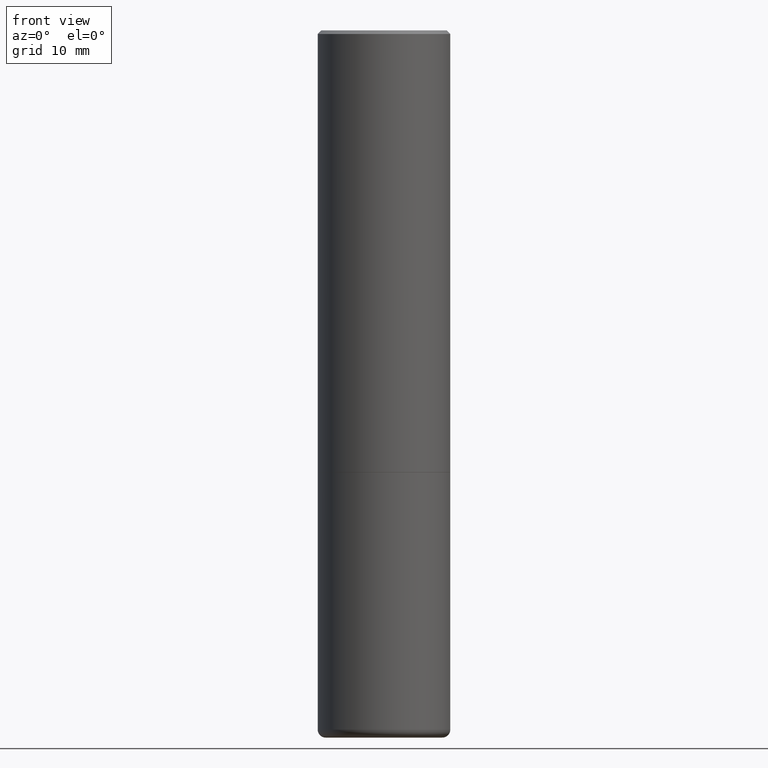
[diagram: clean part render]
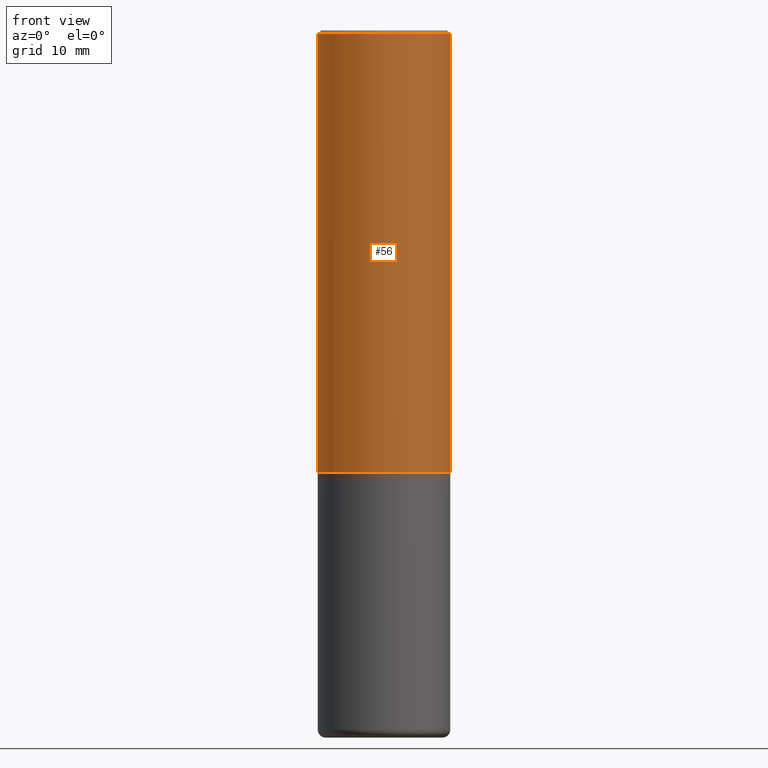
[diagram: same view with one face highlighted and labeled with its STEP entity id]
A machine part, front view. The second image highlights one B-rep face of the part: STEP entity #56.
In plain terms, the highlighted cylindrical surface (partial cylindrical patch) has radius 9.525 mm, axis along (-0, 0, 1).
Its self-contained STEP definition (entity closure, byte-faithful):
#16 = VERTEX_POINT ( 'NONE', #174 ) ;
#26 = ORIENTED_EDGE ( 'NONE', *, *, #374, .T. ) ;
#29 = CYLINDRICAL_SURFACE ( 'NONE', #132, 0.3749999999999998335 ) ;
#30 = DIRECTION ( 'NONE',  ( -2.445468806185136597E-29, 3.491481338843145583E-15, 1.000000000000000000 ) ) ;
#50 = DIRECTION ( 'NONE',  ( 1.000000000000000000, -6.982962677686266711E-15, 0.000000000000000000 ) ) ;
#54 = VECTOR ( 'NONE', #390, 39.37007874015748143 ) ;
#56 = ADVANCED_FACE ( 'NONE', ( #329 ), #29, .T. ) ;
#84 = EDGE_CURVE ( 'NONE', #199, #16, #219, .T. ) ;
#87 = CARTESIAN_POINT ( 'NONE',  ( 4.890937612370276662E-31, -6.982962677686296539E-17, -0.02000000000000001776 ) ) ;
#100 = ORIENTED_EDGE ( 'NONE', *, *, #84, .F. ) ;
#113 = CARTESIAN_POINT ( 'NONE',  ( -0.3749999999999999445, -1.732985487172565737E-15, -2.499000000000000998 ) ) ;
#116 = AXIS2_PLACEMENT_3D ( 'NONE', #87, #278, #50 ) ;
#130 = ORIENTED_EDGE ( 'NONE', *, *, #142, .F. ) ;
#132 = AXIS2_PLACEMENT_3D ( 'NONE', #168, #299, #436 ) ;
#142 = EDGE_CURVE ( 'NONE', #288, #199, #151, .T. ) ;
#151 = LINE ( 'NONE', #253, #54 ) ;
#155 = LINE ( 'NONE', #353, #286 ) ;
#168 = CARTESIAN_POINT ( 'NONE',  ( 0.000000000000000000, 0.000000000000000000, 0.000000000000000000 ) ) ;
#174 = CARTESIAN_POINT ( 'NONE',  ( 0.3749999999999996669, -2.642516375941185268E-15, -0.02000000000000001776 ) ) ;
#188 = DIRECTION ( 'NONE',  ( -2.445468806185136877E-29, 3.491481338843145188E-15, 1.000000000000000000 ) ) ;
#193 = DIRECTION ( 'NONE',  ( 1.000000000000000000, -6.982962677686264344E-15, 0.000000000000000000 ) ) ;
#199 = VERTEX_POINT ( 'NONE', #282 ) ;
#219 = CIRCLE ( 'NONE', #116, 0.3749999999999996669 ) ;
#248 = CARTESIAN_POINT ( 'NONE',  ( 0.3750000000000000555, -1.134382286990137353E-14, -2.499000000000000998 ) ) ;
#253 = CARTESIAN_POINT ( 'NONE',  ( -0.3749999999999998335, 2.664535259100374514E-15, -1.844600658845588757E-29 ) ) ;
#267 = EDGE_LOOP ( 'NONE', ( #130, #26, #318, #100 ) ) ;
#268 = CARTESIAN_POINT ( 'NONE',  ( 6.111226546656659252E-29, -8.725211865769023513E-15, -2.499000000000000998 ) ) ;
#273 = CIRCLE ( 'NONE', #401, 0.3750000000000000555 ) ;
#278 = DIRECTION ( 'NONE',  ( -2.445468806185136597E-29, 3.491481338843145583E-15, 1.000000000000000000 ) ) ;
#282 = CARTESIAN_POINT ( 'NONE',  ( -0.3749999999999996669, 2.548781377355484746E-15, -0.02000000000000001776 ) ) ;
#286 = VECTOR ( 'NONE', #188, 39.37007874015748143 ) ;
#288 = VERTEX_POINT ( 'NONE', #113 ) ;
#299 = DIRECTION ( 'NONE',  ( -2.445468806185136597E-29, 3.491481338843145583E-15, 1.000000000000000000 ) ) ;
#318 = ORIENTED_EDGE ( 'NONE', *, *, #342, .T. ) ;
#329 = FACE_OUTER_BOUND ( 'NONE', #267, .T. ) ;
#342 = EDGE_CURVE ( 'NONE', #357, #16, #155, .T. ) ;
#353 = CARTESIAN_POINT ( 'NONE',  ( 0.3749999999999998335, -2.618611004132348439E-15, 1.828566290923475082E-29 ) ) ;
#357 = VERTEX_POINT ( 'NONE', #248 ) ;
#374 = EDGE_CURVE ( 'NONE', #288, #357, #273, .T. ) ;
#390 = DIRECTION ( 'NONE',  ( -2.445468806185136877E-29, 3.491481338843145188E-15, 1.000000000000000000 ) ) ;
#401 = AXIS2_PLACEMENT_3D ( 'NONE', #268, #30, #193 ) ;
#436 = DIRECTION ( 'NONE',  ( 1.000000000000000000, -6.982962677686265922E-15, 4.876176775795935793E-29 ) ) ;